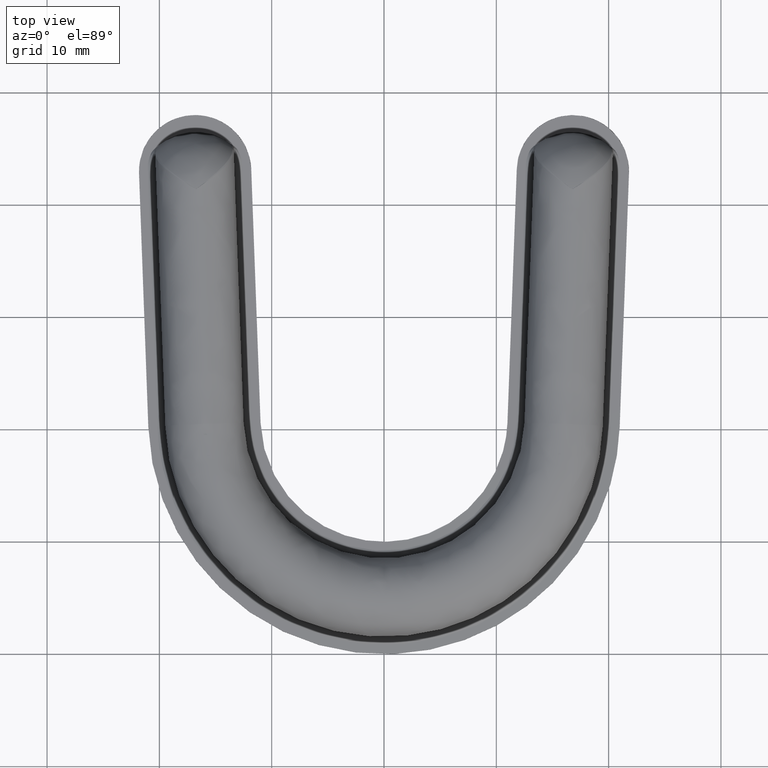
[diagram: clean part render]
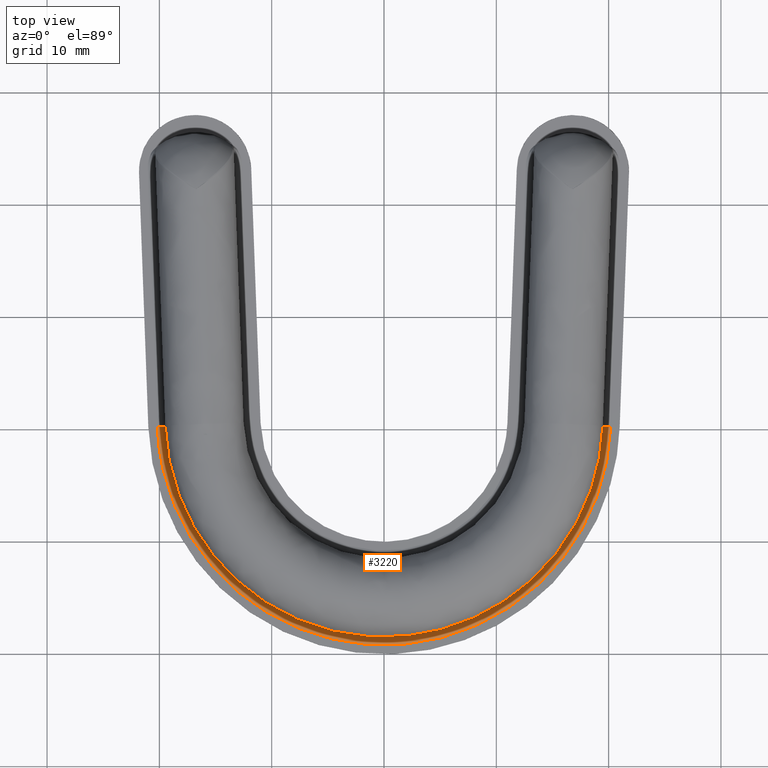
[diagram: same view with one face highlighted and labeled with its STEP entity id]
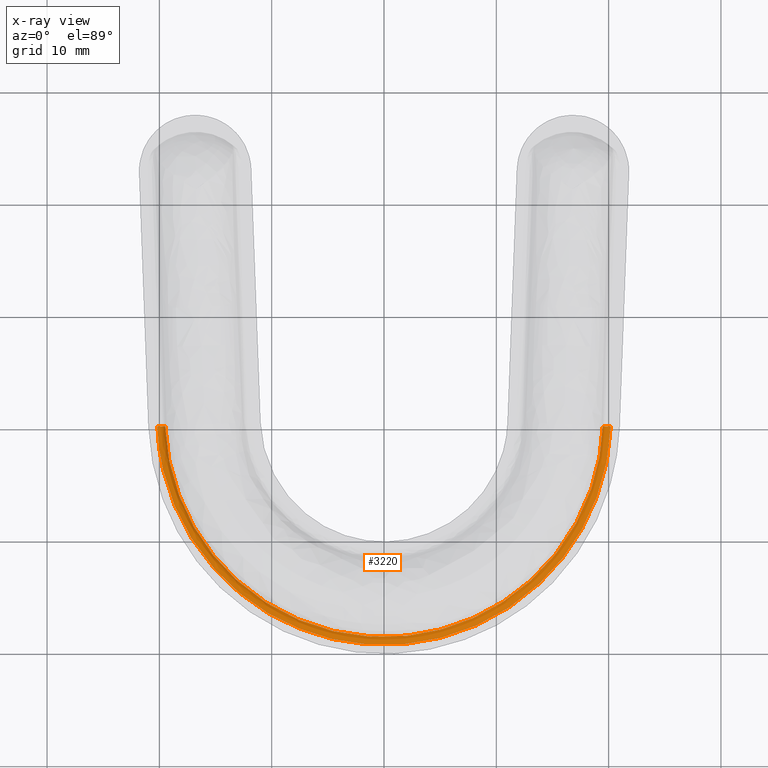
[diagram: x-ray of the same camera — body ghosted, the highlighted face saturated]
A machine part, top view. The second image highlights one B-rep face of the part: STEP entity #3220.
The next image is the same camera in x-ray: the body ghosted, the highlighted face saturated — about 0% of this face is hidden behind the body in this view.
In plain terms, the highlighted face is a freeform B-spline surface patch.
Its self-contained STEP definition (entity closure, byte-faithful):
#3116=CARTESIAN_POINT('',(20.186454670683052,20.260379923718851,0.800000000000040));
#3117=VERTEX_POINT('',#3116);
#3124=CARTESIAN_POINT('',(19.486924301382651,20.286010313678052,1.500000000000040));
#3125=VERTEX_POINT('',#3124);
#3131=CARTESIAN_POINT('',(19.486924301382651,20.286010313678052,1.500000000000040));
#3132=CARTESIAN_POINT('',(19.486924054735976,20.286010322715015,0.800000000000040));
#3133=CARTESIAN_POINT('',(20.186454670683052,20.260379923718851,0.800000000000040));
#3141=(BOUNDED_CURVE()B_SPLINE_CURVE(2,(#3131,#3132,#3133),.UNSPECIFIED.,.F.,.U.)CURVE()GEOMETRIC_REPRESENTATION_ITEM()QUASI_UNIFORM_CURVE()RATIONAL_B_SPLINE_CURVE((1.0,0.707106781186547,1.0))REPRESENTATION_ITEM(''));
#3142=EDGE_CURVE('',#3125,#3117,#3141,.T.);
#3147=CARTESIAN_POINT('',(-19.398704201835510,23.001587347894009,1.548675996565218));
#3148=CARTESIAN_POINT('',(-21.617444991640049,1.498305801249999,1.548675996565215));
#3149=CARTESIAN_POINT('',(-5.023150E-015,1.498305801249992,1.548675996565243));
#3150=CARTESIAN_POINT('',(21.617443276240266,1.498305801249992,1.548675996565271));
#3151=CARTESIAN_POINT('',(19.398704359827743,23.001585816686287,1.548675996565267));
#3152=CARTESIAN_POINT('',(-19.343029307423574,22.995842728918895,0.745723841502195));
#3153=CARTESIAN_POINT('',(-21.555402241008736,1.554276280209430,0.745723841502193));
#3154=CARTESIAN_POINT('',(-3.972322E-015,1.554276280209423,0.745723841502220));
#3155=CARTESIAN_POINT('',(21.555400530532189,1.554276280209424,0.745723841502248));
#3156=CARTESIAN_POINT('',(19.343029464962363,22.995841202105797,0.745723841502246));
#3157=CARTESIAN_POINT('',(-20.141740999109011,23.078254997287900,0.801694453635578));
#3158=CARTESIAN_POINT('',(-22.445467158724004,0.751324134429424,0.801694453635575));
#3159=CARTESIAN_POINT('',(-4.143423E-015,0.751324134429416,0.801694453635604));
#3160=CARTESIAN_POINT('',(22.445465377618511,0.751324134429420,0.801694453635633));
#3161=CARTESIAN_POINT('',(20.141741163152883,23.078253407429692,0.801694453635630));
#3169=(BOUNDED_SURFACE()B_SPLINE_SURFACE(2,2,((#3147,#3152,#3157),(#3148,#3153,#3158),(#3149,#3154,#3159),(#3150,#3155,#3160),(#3151,#3156,#3161)),.UNSPECIFIED.,.F.,.F.,.U.)B_SPLINE_SURFACE_WITH_KNOTS((3,2,3),(3,3),(0.0,36.014783263928273,72.029564622596837),(0.0,1.275661927197440),.UNSPECIFIED.)GEOMETRIC_REPRESENTATION_ITEM()RATIONAL_B_SPLINE_SURFACE(((0.910592208447363,0.597553292875891,0.910592277254127),(0.612843967205141,0.402163479135156,0.612844013513257),(0.919258253921197,0.603240167814050,0.919258323382791),(0.612843983415117,0.402163489772546,0.612844029723235),(0.910592176944317,0.597553272202807,0.910592245751078)))REPRESENTATION_ITEM('')SURFACE());
#3170=CARTESIAN_POINT('',(-19.486924054735951,20.286010322714951,1.499999999999986));
#3171=VERTEX_POINT('',#3170);
#3172=CARTESIAN_POINT('',(-20.186454670683052,20.260379923718801,0.799999999999987));
#3173=VERTEX_POINT('',#3172);
#3174=CARTESIAN_POINT('',(-19.486924054735969,20.286010322714969,1.499999999999986));
#3175=CARTESIAN_POINT('',(-19.486924054735976,20.286010322714972,0.799999999999986));
#3176=CARTESIAN_POINT('',(-20.186454670683052,20.260379923718801,0.799999999999986));
#3184=(BOUNDED_CURVE()B_SPLINE_CURVE(2,(#3174,#3175,#3176),.UNSPECIFIED.,.F.,.U.)CURVE()GEOMETRIC_REPRESENTATION_ITEM()QUASI_UNIFORM_CURVE()RATIONAL_B_SPLINE_CURVE((1.0,0.707106781186547,1.0))REPRESENTATION_ITEM(''));
#3185=EDGE_CURVE('',#3171,#3173,#3184,.T.);
#3186=ORIENTED_EDGE('',*,*,#3185,.T.);
#3187=CARTESIAN_POINT('',(20.186454670683041,20.260379923718862,0.800000000000013));
#3188=CARTESIAN_POINT('',(19.473437564118150,0.800000246812402,0.800000000000013));
#3189=CARTESIAN_POINT('',(-1.661554E-015,0.800000246812402,0.800000000000013));
#3190=CARTESIAN_POINT('',(-19.473437564118097,0.800000246812402,0.800000000000013));
#3191=CARTESIAN_POINT('',(-20.186454670683030,20.260379923718801,0.800000000000013));
#3199=(BOUNDED_CURVE()B_SPLINE_CURVE(2,(#3187,#3188,#3189,#3190,#3191),.UNSPECIFIED.,.F.,.U.)B_SPLINE_CURVE_WITH_KNOTS((3,2,3),(0.0,0.500000000000000,1.0),.UNSPECIFIED.)CURVE()GEOMETRIC_REPRESENTATION_ITEM()RATIONAL_B_SPLINE_CURVE((1.0,0.719935710917586,1.0,0.719935710917586,1.0))REPRESENTATION_ITEM(''));
#3200=EDGE_CURVE('',#3117,#3173,#3199,.T.);
#3201=ORIENTED_EDGE('',*,*,#3200,.F.);
#3202=ORIENTED_EDGE('',*,*,#3142,.F.);
#3203=CARTESIAN_POINT('',(-19.486924054735962,20.286010322714951,1.500000000000000));
#3204=CARTESIAN_POINT('',(-18.798615462066742,1.500000246812401,1.500000000000000));
#3205=CARTESIAN_POINT('',(-2.571673E-015,1.500000246812402,1.500000000000000));
#3206=CARTESIAN_POINT('',(18.798615462066824,1.500000246812401,1.500000000000000));
#3207=CARTESIAN_POINT('',(19.486924301382651,20.286010313678052,1.500000000000040));
#3215=(BOUNDED_CURVE()B_SPLINE_CURVE(2,(#3203,#3204,#3205,#3206,#3207),.UNSPECIFIED.,.F.,.U.)B_SPLINE_CURVE_WITH_KNOTS((3,2,3),(0.0,0.500000000000000,1.0),.UNSPECIFIED.)CURVE()GEOMETRIC_REPRESENTATION_ITEM()RATIONAL_B_SPLINE_CURVE((1.0,0.719935710917587,1.0,0.719935710917587,1.0))REPRESENTATION_ITEM(''));
#3216=EDGE_CURVE('',#3171,#3125,#3215,.T.);
#3217=ORIENTED_EDGE('',*,*,#3216,.F.);
#3218=EDGE_LOOP('',(#3186,#3201,#3202,#3217));
#3219=FACE_OUTER_BOUND('',#3218,.T.);
#3220=ADVANCED_FACE('',(#3219),#3169,.F.);